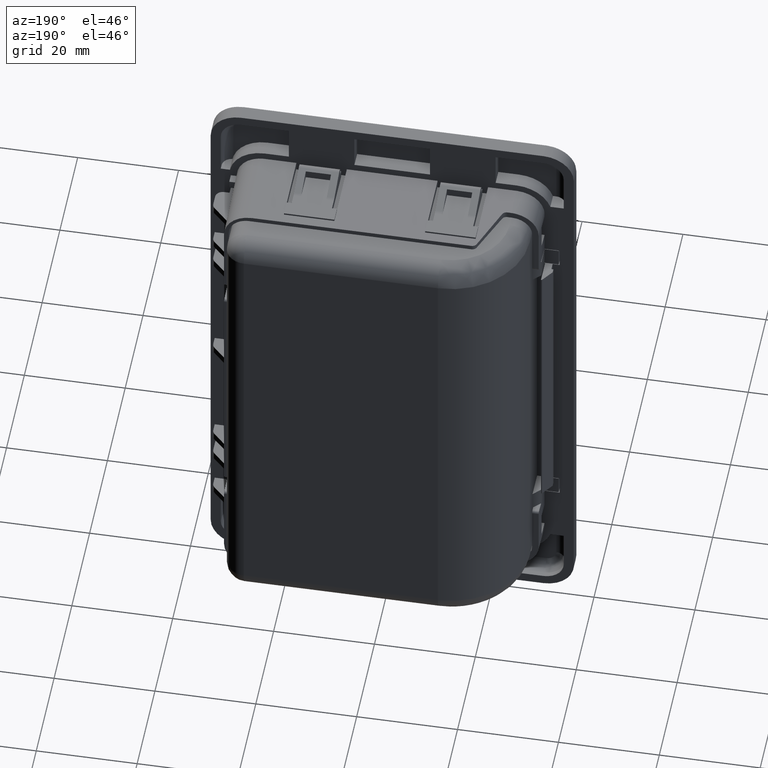
[diagram: clean part render]
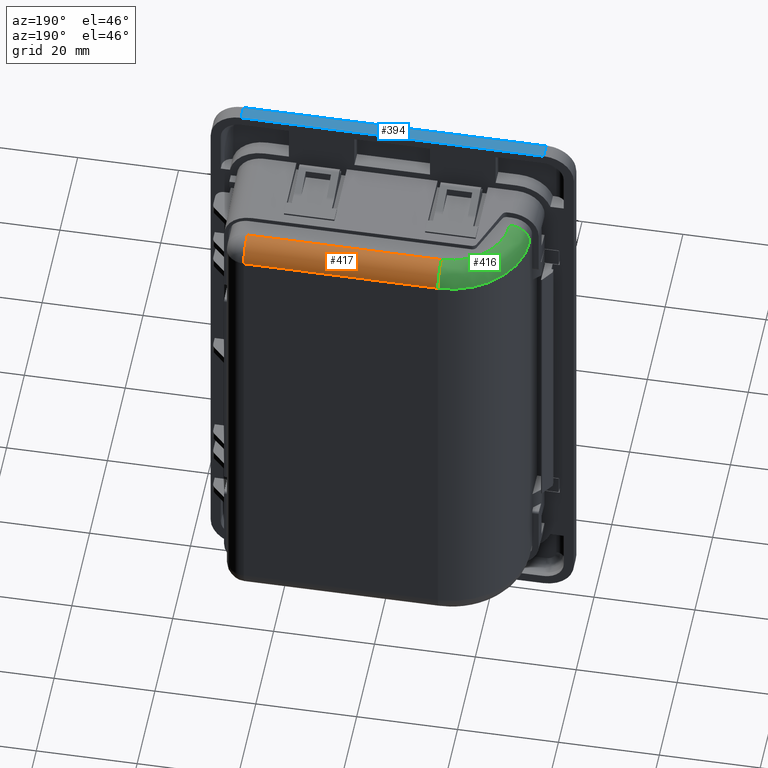
[diagram: same view with three faces highlighted in distinct colors, each labeled with its STEP entity id]
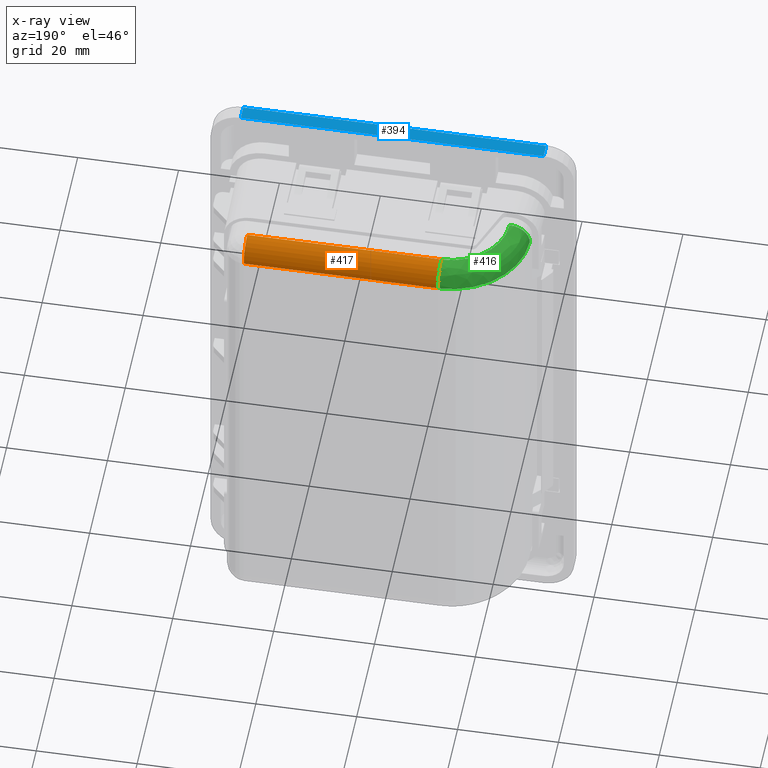
[diagram: x-ray of the same camera — body ghosted, the three highlighted faces saturated]
A machine part, auxiliary view with three faces highlighted in distinct colors.
The next image is the same camera in x-ray (body ghosted, the three faces saturated) — at least one of them is partly hidden behind the body in this view.
Their STEP definitions:

[orange] entity #417 — the highlighted cylindrical surface (edge-blend (fillet) strip) has radius 4 mm, axis along (-1, -0, -0).
#417=ADVANCED_FACE('',(#4814),#4813,.T.);
#4813=CYLINDRICAL_SURFACE('',#12818,4.00000000000E+000);
#4814=FACE_OUTER_BOUND('',#12819,.T.);
#12815=CARTESIAN_POINT('',(-1.99999999835E-001,1.95000000000E+001,4.38000000001E+001));
#12816=DIRECTION('',(-1.00000000000E+000,-0.00000000000E+000,-0.00000000000E+000));
#12817=DIRECTION('',(-0.00000000000E+000,-0.00000000000E+000,1.00000000000E+000));
#12818=AXIS2_PLACEMENT_3D('',#12815,#12816,#12817);
#12819=EDGE_LOOP('',(#20850,#20851,#20852,#20853));
#20850=ORIENTED_EDGE('',*,*,#25177,.T.);
#20851=ORIENTED_EDGE('',*,*,#25178,.F.);
#20852=ORIENTED_EDGE('',*,*,#25174,.F.);
#20853=ORIENTED_EDGE('',*,*,#25179,.F.);
#25174=EDGE_CURVE('',#36328,#36329,#36330,.T.);
#25177=EDGE_CURVE('',#36348,#36349,#36350,.T.);
#25178=EDGE_CURVE('',#36329,#36349,#36356,.T.);
#25179=EDGE_CURVE('',#36348,#36328,#36362,.T.);
#36328=VERTEX_POINT('',#47972);
#36329=VERTEX_POINT('',#47973);
#36330=CIRCLE('',#47977,4.00000000000E+000);
#36348=VERTEX_POINT('',#47986);
#36349=VERTEX_POINT('',#47987);
#36350=CIRCLE('',#47991,4.00000000000E+000);
#36356=LINE('',#47992,#47993);
#36362=LINE('',#47995,#47996);
#47972=CARTESIAN_POINT('',(-1.31999999998E+001,1.95000000000E+001,4.78000000001E+001));
#47973=CARTESIAN_POINT('',(-1.31999999998E+001,2.35000000000E+001,4.38000000001E+001));
#47974=CARTESIAN_POINT('',(-1.31999999998E+001,1.95000000000E+001,4.38000000001E+001));
#47975=DIRECTION('',(-1.00000000000E+000,0.00000000000E+000,0.00000000000E+000));
#47976=DIRECTION('',(-0.00000000000E+000,-0.00000000000E+000,-1.00000000000E+000));
#47977=AXIS2_PLACEMENT_3D('',#47974,#47975,#47976);
#47986=CARTESIAN_POINT('',(2.53000000003E+001,1.95000000000E+001,4.78000000001E+001));
#47987=CARTESIAN_POINT('',(2.53000000003E+001,2.35000000000E+001,4.38000000001E+001));
#47988=CARTESIAN_POINT('',(2.53000000003E+001,1.95000000000E+001,4.38000000001E+001));
#47989=DIRECTION('',(-1.00000000000E+000,-0.00000000000E+000,-0.00000000000E+000));
#47990=DIRECTION('',(-0.00000000000E+000,-0.00000000000E+000,1.00000000000E+000));
#47991=AXIS2_PLACEMENT_3D('',#47988,#47989,#47990);
#47992=CARTESIAN_POINT('',(-1.31999999998E+001,2.35000000000E+001,4.38000000001E+001));
#47993=VECTOR('',#47994,3.85000000001E+001);
#47994=DIRECTION('',(1.00000000000E+000,0.00000000000E+000,0.00000000000E+000));
#47995=CARTESIAN_POINT('',(2.53000000003E+001,1.95000000000E+001,4.78000000001E+001));
#47996=VECTOR('',#47997,3.85000000001E+001);
#47997=DIRECTION('',(-1.00000000000E+000,0.00000000000E+000,0.00000000000E+000));

[blue] entity #394 — the highlighted planar face has unit normal (0, -0, 1).
#394=ADVANCED_FACE('',(#4583),#4582,.T.);
#4582=PLANE('',#12605);
#4583=FACE_OUTER_BOUND('',#12606,.T.);
#12602=CARTESIAN_POINT('',(-3.59999999995E+001,-3.09604878372E+000,6.00000000000E+001));
#12603=DIRECTION('',(0.00000000000E+000,-0.00000000000E+000,1.00000000000E+000));
#12604=DIRECTION('',(1.00000000000E+000,0.00000000000E+000,-0.00000000000E+000));
#12605=AXIS2_PLACEMENT_3D('',#12602,#12603,#12604);
#12606=EDGE_LOOP('',(#20749,#20750,#20751,#20752));
#20749=ORIENTED_EDGE('',*,*,#25104,.T.);
#20750=ORIENTED_EDGE('',*,*,#25105,.T.);
#20751=ORIENTED_EDGE('',*,*,#25106,.T.);
#20752=ORIENTED_EDGE('',*,*,#25107,.T.);
#25104=EDGE_CURVE('',#35860,#35861,#35862,.T.);
#25105=EDGE_CURVE('',#35861,#35868,#35869,.T.);
#25106=EDGE_CURVE('',#35868,#35875,#35876,.T.);
#25107=EDGE_CURVE('',#35875,#35860,#35882,.T.);
#35860=VERTEX_POINT('',#47622);
#35861=VERTEX_POINT('',#47623);
#35862=LINE('',#47624,#47625);
#35868=VERTEX_POINT('',#47627);
#35869=LINE('',#47628,#47629);
#35875=VERTEX_POINT('',#47631);
#35876=LINE('',#47632,#47633);
#35882=LINE('',#47635,#47636);
#47622=CARTESIAN_POINT('',(-2.99999999996E+001,-1.19938781129E-011,6.00000000000E+001));
#47623=CARTESIAN_POINT('',(-2.99999999996E+001,-2.81458980339E+000,6.00000000000E+001));
#47624=CARTESIAN_POINT('',(-2.99999999996E+001,-1.20508047985E-011,6.00000000000E+001));
#47625=VECTOR('',#47626,2.81458980337E+000);
#47626=DIRECTION('',(0.00000000000E+000,-1.00000000000E+000,0.00000000000E+000));
#47627=CARTESIAN_POINT('',(2.99999999996E+001,-2.81458980339E+000,6.00000000000E+001));
#47628=CARTESIAN_POINT('',(-2.99999999996E+001,-2.81458980339E+000,6.00000000000E+001));
#47629=VECTOR('',#47630,5.99999999992E+001);
#47630=DIRECTION('',(1.00000000000E+000,0.00000000000E+000,0.00000000000E+000));
#47631=CARTESIAN_POINT('',(2.99999999996E+001,-1.19938781129E-011,6.00000000000E+001));
#47632=CARTESIAN_POINT('',(2.99999999996E+001,-2.81458980339E+000,6.00000000000E+001));
#47633=VECTOR('',#47634,2.81458980337E+000);
#47634=DIRECTION('',(0.00000000000E+000,1.00000000000E+000,0.00000000000E+000));
#47635=CARTESIAN_POINT('',(2.99999999996E+001,-1.19938781129E-011,6.00000000000E+001));
#47636=VECTOR('',#47637,5.99999999992E+001);
#47637=DIRECTION('',(-1.00000000000E+000,0.00000000000E+000,0.00000000000E+000));

[green] entity #416 — the highlighted face is a freeform B-spline surface patch.
#416=ADVANCED_FACE('',(#4804),#4803,.T.);
#4803=( BOUNDED_SURFACE() B_SPLINE_SURFACE( 2,2,((#12779,#12780,#12781,#12782,#12783),(#12784,#12785,#12786,#12787,#12788),(#12789,#12790,#12791,#12792,#12793),(#12794,#12795,#12796,#12797,#12798),(#12799,#12800,#12801,#12802,#12803),(#12804,#12805,#12806,#12807,#12808),(#12809,#12810,#12811,#12812,#12813)), .UNSPECIFIED.,.T.,.F.,.F.) B_SPLINE_SURFACE_WITH_KNOTS((3,2,2,3),(3,2,3),(0.00000000000E+000,3.33333333333E-001,6.66666666667E-001,1.00000000000E+000),(0.00000000000E+000,5.00000000000E-001,1.00000000000E+000), .UNSPECIFIED. ) GEOMETRIC_REPRESENTATION_ITEM() RATIONAL_B_SPLINE_SURFACE(((1.00000000000E+000,7.07106781187E-001,1.00000000000E+000,7.07106781187E-001,1.00000000000E+000),(5.00000000000E-001,3.53553390593E-001,5.00000000000E-001,3.53553390593E-001,5.00000000000E-001),(1.00000000000E+000,7.07106781187E-001,1.00000000000E+000,7.07106781187E-001,1.00000000000E+000),(5.00000000000E-001,3.53553390593E-001,5.00000000000E-001,3.53553390593E-001,5.00000000000E-001),(1.00000000000E+000,7.07106781187E-001,1.00000000000E+000,7.07106781187E-001,1.00000000000E+000),(5.00000000000E-001,3.53553390593E-001,5.00000000000E-001,3.53553390593E-001,5.00000000000E-001),(1.00000000000E+000,7.07106781187E-001,1.00000000000E+000,7.07106781187E-001,1.00000000000E+000))) REPRESENTATION_ITEM('') SURFACE() );
#4804=FACE_OUTER_BOUND('',#12814,.T.);
#12779=CARTESIAN_POINT('',(-5.69999999982E+000,8.00000000000E+000,4.38000000001E+001));
#12780=CARTESIAN_POINT('',(-5.69999999982E+000,8.00000000000E+000,4.78000000001E+001));
#12781=CARTESIAN_POINT('',(-1.69999999982E+000,8.00000000000E+000,4.78000000001E+001));
#12782=CARTESIAN_POINT('',(2.30000000018E+000,8.00000000000E+000,4.78000000001E+001));
#12783=CARTESIAN_POINT('',(2.30000000018E+000,8.00000000000E+000,4.38000000001E+001));
#12784=CARTESIAN_POINT('',(-5.69999999982E+000,-4.99038105677E+000,4.38000000001E+001));
#12785=CARTESIAN_POINT('',(-5.69999999982E+000,-4.99038105677E+000,4.78000000001E+001));
#12786=CARTESIAN_POINT('',(-1.69999999982E+000,-1.19185842870E+001,4.78000000001E+001));
#12787=CARTESIAN_POINT('',(2.30000000018E+000,-1.88467875173E+001,4.78000000001E+001));
#12788=CARTESIAN_POINT('',(2.30000000018E+000,-1.88467875173E+001,4.38000000001E+001));
#12789=CARTESIAN_POINT('',(-1.69499999998E+001,1.50480947162E+000,4.38000000001E+001));
#12790=CARTESIAN_POINT('',(-1.69499999998E+001,1.50480947162E+000,4.78000000001E+001));
#12791=CARTESIAN_POINT('',(-1.89499999998E+001,-1.95929214352E+000,4.78000000001E+001));
#12792=CARTESIAN_POINT('',(-2.09499999998E+001,-5.42339375866E+000,4.78000000001E+001));
#12793=CARTESIAN_POINT('',(-2.09499999998E+001,-5.42339375866E+000,4.38000000001E+001));
#12794=CARTESIAN_POINT('',(-2.81999999998E+001,8.00000000000E+000,4.38000000001E+001));
#12795=CARTESIAN_POINT('',(-2.81999999998E+001,8.00000000000E+000,4.78000000001E+001));
#12796=CARTESIAN_POINT('',(-3.61999999998E+001,8.00000000000E+000,4.78000000001E+001));
#12797=CARTESIAN_POINT('',(-4.41999999998E+001,8.00000000000E+000,4.78000000001E+001));
#12798=CARTESIAN_POINT('',(-4.41999999998E+001,8.00000000000E+000,4.38000000001E+001));
#12799=CARTESIAN_POINT('',(-1.69499999998E+001,1.44951905284E+001,4.38000000001E+001));
#12800=CARTESIAN_POINT('',(-1.69499999998E+001,1.44951905284E+001,4.78000000001E+001));
#12801=CARTESIAN_POINT('',(-1.89499999998E+001,1.79592921435E+001,4.78000000001E+001));
#12802=CARTESIAN_POINT('',(-2.09499999998E+001,2.14233937587E+001,4.78000000001E+001));
#12803=CARTESIAN_POINT('',(-2.09499999998E+001,2.14233937587E+001,4.38000000001E+001));
#12804=CARTESIAN_POINT('',(-5.69999999982E+000,2.09903810568E+001,4.38000000001E+001));
#12805=CARTESIAN_POINT('',(-5.69999999982E+000,2.09903810568E+001,4.78000000001E+001));
#12806=CARTESIAN_POINT('',(-1.69999999982E+000,2.79185842870E+001,4.78000000001E+001));
#12807=CARTESIAN_POINT('',(2.30000000018E+000,3.48467875173E+001,4.78000000001E+001));
#12808=CARTESIAN_POINT('',(2.30000000018E+000,3.48467875173E+001,4.38000000001E+001));
#12809=CARTESIAN_POINT('',(-5.69999999982E+000,8.00000000000E+000,4.38000000001E+001));
#12810=CARTESIAN_POINT('',(-5.69999999982E+000,8.00000000000E+000,4.78000000001E+001));
#12811=CARTESIAN_POINT('',(-1.69999999982E+000,8.00000000000E+000,4.78000000001E+001));
#12812=CARTESIAN_POINT('',(2.30000000018E+000,8.00000000000E+000,4.78000000001E+001));
#12813=CARTESIAN_POINT('',(2.30000000018E+000,8.00000000000E+000,4.38000000001E+001));
#12814=EDGE_LOOP('',(#20846,#20847,#20848,#20849));
#20846=ORIENTED_EDGE('',*,*,#25174,.T.);
#20847=ORIENTED_EDGE('',*,*,#25175,.F.);
#20848=ORIENTED_EDGE('',*,*,#25170,.F.);
#20849=ORIENTED_EDGE('',*,*,#25176,.F.);
#25170=EDGE_CURVE('',#36300,#36301,#36302,.T.);
#25174=EDGE_CURVE('',#36328,#36329,#36330,.T.);
#25175=EDGE_CURVE('',#36301,#36329,#36336,.T.);
#25176=EDGE_CURVE('',#36328,#36300,#36342,.T.);
#36300=VERTEX_POINT('',#47933);
#36301=VERTEX_POINT('',#47934);
#36302=CIRCLE('',#47938,4.00000000000E+000);
#36328=VERTEX_POINT('',#47972);
#36329=VERTEX_POINT('',#47973);
#36330=CIRCLE('',#47977,4.00000000000E+000);
#36336=CIRCLE('',#47981,1.55000000000E+001);
#36342=CIRCLE('',#47985,1.15000000000E+001);
#47933=CARTESIAN_POINT('',(-2.46999999998E+001,7.99999999986E+000,4.78000000001E+001));
#47934=CARTESIAN_POINT('',(-2.86999999998E+001,7.99999999982E+000,4.38000000001E+001));
#47935=CARTESIAN_POINT('',(-2.46999999998E+001,7.99999999986E+000,4.38000000001E+001));
#47936=DIRECTION('',(9.74914593499E-012,-1.00000000000E+000,0.00000000000E+000));
#47937=DIRECTION('',(1.00000000000E+000,9.74914593499E-012,-0.00000000000E+000));
#47938=AXIS2_PLACEMENT_3D('',#47935,#47936,#47937);
#47972=CARTESIAN_POINT('',(-1.31999999998E+001,1.95000000000E+001,4.78000000001E+001));
#47973=CARTESIAN_POINT('',(-1.31999999998E+001,2.35000000000E+001,4.38000000001E+001));
#47974=CARTESIAN_POINT('',(-1.31999999998E+001,1.95000000000E+001,4.38000000001E+001));
#47975=DIRECTION('',(-1.00000000000E+000,0.00000000000E+000,0.00000000000E+000));
#47976=DIRECTION('',(-0.00000000000E+000,-0.00000000000E+000,-1.00000000000E+000));
#47977=AXIS2_PLACEMENT_3D('',#47974,#47975,#47976);
#47978=CARTESIAN_POINT('',(-1.31999999998E+001,8.00000000000E+000,4.38000000001E+001));
#47979=DIRECTION('',(0.00000000000E+000,0.00000000000E+000,-1.00000000000E+000));
#47980=DIRECTION('',(1.00000000000E+000,-0.00000000000E+000,-0.00000000000E+000));
#47981=AXIS2_PLACEMENT_3D('',#47978,#47979,#47980);
#47982=CARTESIAN_POINT('',(-1.31999999998E+001,8.00000000000E+000,4.78000000001E+001));
#47983=DIRECTION('',(0.00000000000E+000,-0.00000000000E+000,1.00000000000E+000));
#47984=DIRECTION('',(1.00000000000E+000,-0.00000000000E+000,-0.00000000000E+000));
#47985=AXIS2_PLACEMENT_3D('',#47982,#47983,#47984);